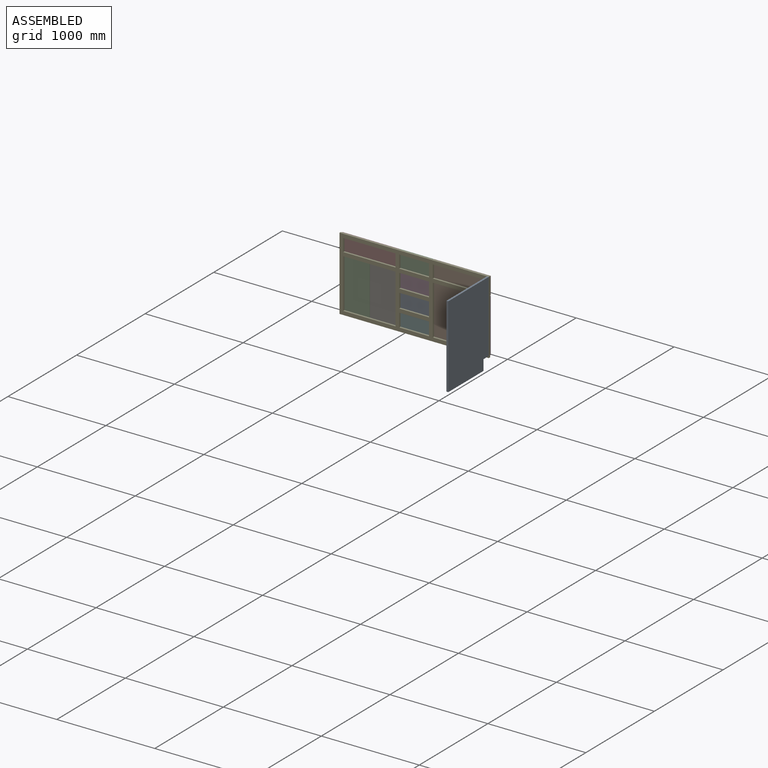
[diagram: assembled view]
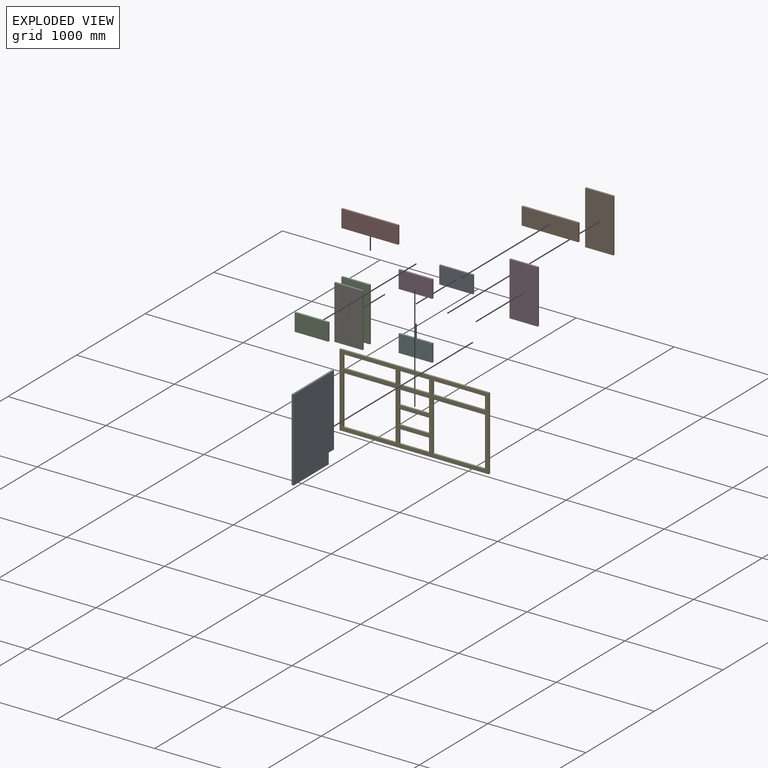
[diagram: exploded view]
GUIDED TOUR — MATED ASSEMBLY (Onshape document 588af566810c240f85f01b89, AutoMate assembly 588af566810c240f85f01b89_cfa53b5fc802aee5063241dd_668300cef39941d5db4d2f16_default)

This assembly has 12 components, labeled P0..P11 below (a component is one placed occurrence of a part; the same part can appear more than once), held together by 33 mates. A mate is a constraint between two components; its type names the relative motion it leaves free:
  PLANAR — leaves sliding in the plane through the listed point (normal = the listed direction) and rotation about that normal free.
Axis/direction vectors are unit vectors and 'through' points are millimeter coordinates, both in the assembly's world frame.

MATES
  1. PLANAR "Planar 2": P2 <-> P4, direction (0.000, 0.000, 1.000) through (-781.12, -74.08, 769.67) mm
  2. PLANAR "Planar 3": P2 <-> P4, direction (1.000, 0.000, 0.000) through (-609.67, -74.08, 680.77) mm
  3. PLANAR "Planar 27": P9 <-> P1, direction (-1.000, 0.000, 0.000) through (-603.32, -74.08, 312.47) mm
  4. PLANAR "Planar 32": P0 <-> P4, direction (0.000, 0.000, 1.000) through (-28.65, -397.93, 776.02) mm
  5. PLANAR "Planar 12": P8 <-> P5, direction (0.000, 0.000, -1.000) through (-781.12, -74.08, 223.57) mm
  6. PLANAR "Planar 25": P2 <-> P1, direction (0.000, 1.000, 0.000) through (-781.12, -64.56, 680.77) mm
  7. PLANAR "Planar 29": P7 <-> P2, direction (0.000, 0.000, 1.000) through (-1247.85, -74.08, 769.67) mm
  8. PLANAR "Planar 31": P0 <-> P4, direction (1.000, 0.000, 0.000) through (-19.12, -402.28, 363.09) mm
  9. PLANAR "Planar 23": P6 <-> P10, direction (0.000, 0.000, 1.000) through (-1102.59, -74.08, 585.52) mm
  10. PLANAR "Planar 10": P5 <-> P8, direction (0.000, 1.000, 0.000) through (-781.12, -64.56, 128.32) mm
  11. PLANAR "Planar 5": P2 <-> P11, direction (-1.000, 0.000, 0.000) through (-952.57, -74.08, 680.77) mm
  12. PLANAR "Planar 24": P6 <-> P10, direction (-1.000, 0.000, 0.000) through (-1246.26, -74.08, 312.47) mm
  13. PLANAR "Planar 33": P0 <-> P4, direction (0.000, 1.000, 0.000) through (-19.12, -102.66, 776.02) mm
  14. PLANAR "Planar 26": P1 <-> P2, direction (0.000, 0.000, 1.000) through (-314.40, -74.08, 769.67) mm
  15. PLANAR "Planar 22": P10 <-> P6, direction (0.000, 1.000, 0.000) through (-1393.10, -64.56, 312.47) mm
  16. PLANAR "Planar 13": P9 <-> P11, direction (0.000, 1.000, 0.000) through (-459.65, -64.56, 312.47) mm
  17. PLANAR "Planar 1": P4 <-> P2, direction (0.000, 1.000, 0.000) through (-971.62, -83.61, 737.92) mm
  18. PLANAR "Planar 11": P8 <-> P5, direction (-1.000, 0.000, 0.000) through (-952.57, -64.56, 223.57) mm
  19. PLANAR "Planar 6": P2 <-> P11, direction (0.000, 0.000, -1.000) through (-781.12, -74.08, 591.87) mm
  20. PLANAR "Planar 30": P6 <-> P7, direction (1.000, 0.000, 0.000) through (-958.92, -74.08, 312.47) mm
  21. PLANAR "Planar 21": P11 <-> P6, direction (-1.000, 0.000, 0.000) through (-952.57, -74.08, 496.62) mm
  22. PLANAR "Planar 7": P11 <-> P8, direction (0.000, 1.000, 0.000) through (-781.12, -64.56, 496.62) mm
  23. PLANAR "Planar 28": P7 <-> P2, direction (0.000, 1.000, 0.000) through (-1247.85, -64.56, 680.77) mm
  24. PLANAR "Planar 4": P11 <-> P2, direction (0.000, 1.000, 0.000) through (-781.12, -64.56, 496.62) mm
  25. PLANAR "Planar 8": P8 <-> P11, direction (-1.000, 0.000, 0.000) through (-952.57, -74.08, 312.47) mm
  26. PLANAR "Planar 9": P11 <-> P8, direction (0.000, 0.000, -1.000) through (-781.12, -74.08, 407.72) mm
  27. PLANAR "Planar 14": P11 <-> P9, direction (0.000, 0.000, 1.000) through (-781.12, -74.08, 585.52) mm
  28. PLANAR "Planar 15": P3 <-> P9, direction (0.000, 1.000, 0.000) through (-169.14, -64.56, 312.47) mm
  29. PLANAR "Planar 20": P11 <-> P6, direction (0.000, 0.000, 1.000) through (-781.12, -74.08, 585.52) mm
  30. PLANAR "Planar 19": P6 <-> P11, direction (0.000, 1.000, 0.000) through (-1246.26, -64.56, 312.47) mm
  31. PLANAR "Planar 16": P3 <-> P9, direction (-1.000, 0.000, 0.000) through (-312.81, -74.08, 312.47) mm
  32. PLANAR "Planar 17": P3 <-> P9, direction (0.000, 0.000, 1.000) through (-169.14, -74.08, 585.52) mm
  33. PLANAR "Planar 18": P11 <-> P9, direction (1.000, 0.000, 0.000) through (-609.67, -74.08, 496.62) mm

ASSEMBLY ORDER
  1. P11 — the base component [order verified]
  2. P5 [order verified]
  3. P8 [order verified]
  4. P1 [order verified]
  5. P7 [order verified]
  6. P3 [order verified]
  7. P6 [order verified]
  8. P9 [order verified]
  9. P10 [order verified]
  10. P2 [order verified]
  11. P4 [order verified]
  12. P0 [order verified]
Order-tag legend:
  [order verified] — this step's position reverses a verified removal order: the component was checked to insert without passing through the ones already placed.

Of the 12 components, 12 carry the full construction recipe — the FeatureScript program that regenerates the part's solid from scratch; the rest are supplied as boundary geometry only.
Each toured component is shown spotlighted twice — in the assembled view, then in the exploded view, where a leader line traces a displaced component back to its assembled socket (saturated green if recipe-attached, orange if geometry-only; every other component desaturated gray) — followed by its recipe or geometry summary and the mates that hold it.
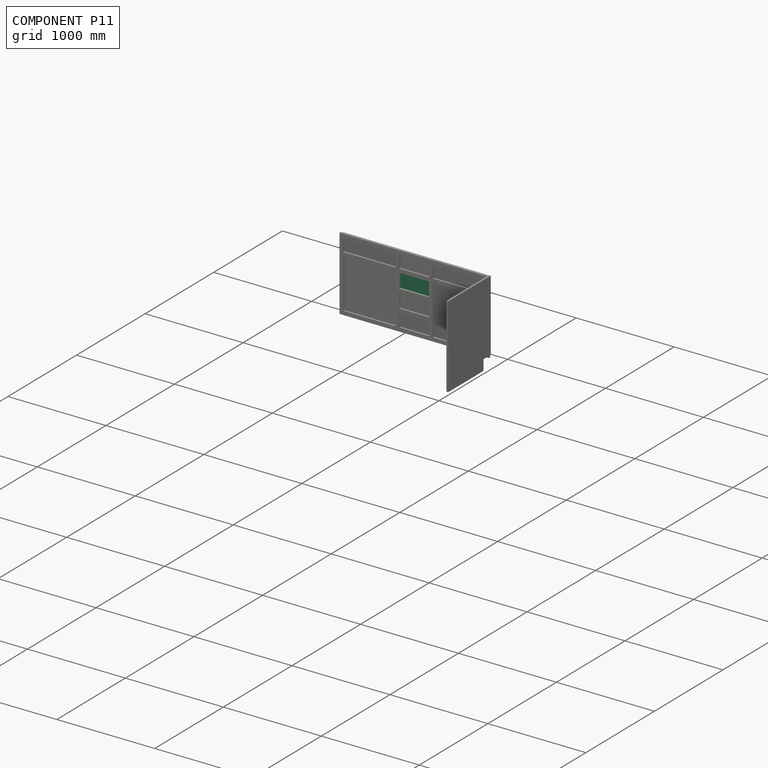
[diagram: component P11 — assembled]
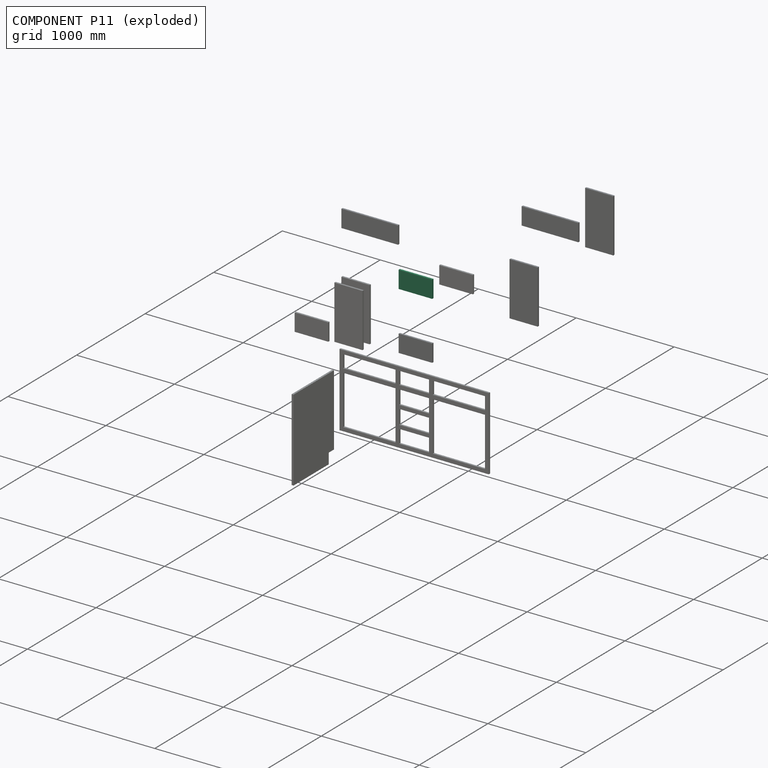
[diagram: component P11 — exploded]
COMPONENT P11 — same part as P2 (CADFS 00479709); its construction recipe is shown at P2.
Held by: PLANAR mate "Planar 5" to P2; PLANAR mate "Planar 13" to P9; PLANAR mate "Planar 6" to P2; PLANAR mate "Planar 21" to P6; PLANAR mate "Planar 7" to P8; PLANAR mate "Planar 4" to P2; PLANAR mate "Planar 8" to P8; PLANAR mate "Planar 9" to P8; PLANAR mate "Planar 14" to P9; PLANAR mate "Planar 20" to P6; PLANAR mate "Planar 19" to P6; PLANAR mate "Planar 18" to P9.
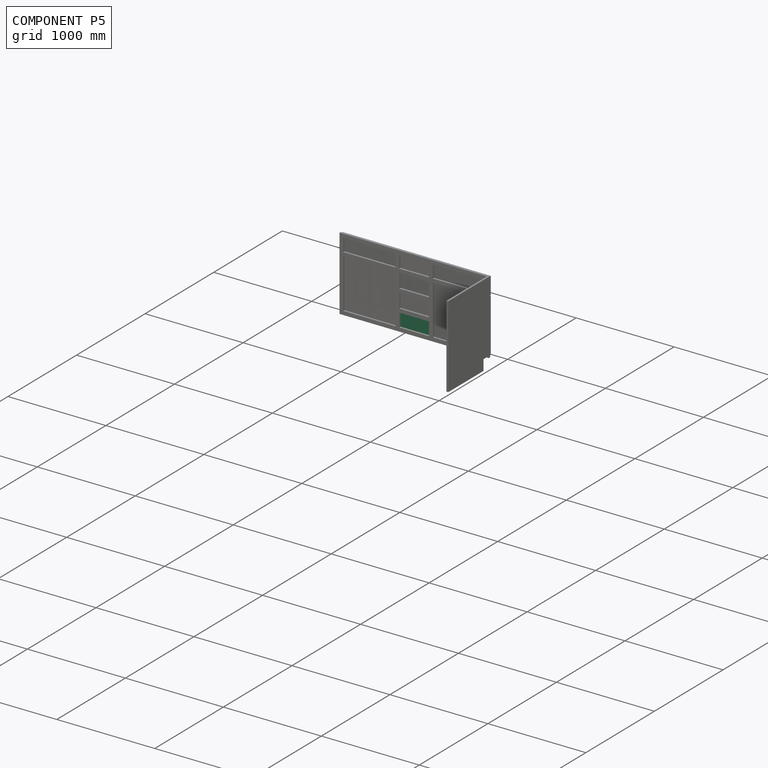
[diagram: component P5 — assembled]
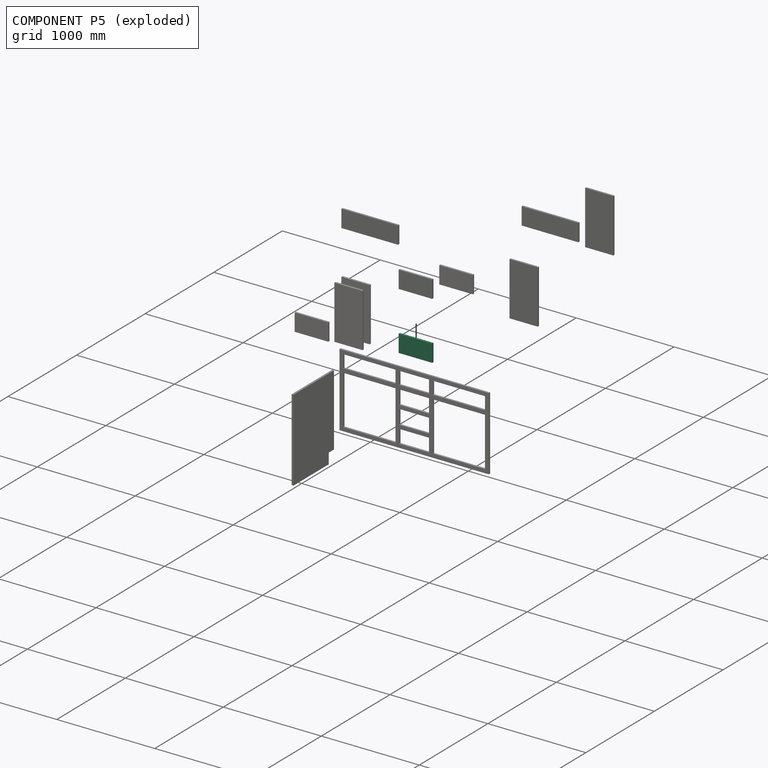
[diagram: component P5 — exploded]
COMPONENT P5 — same part as P2 (CADFS 00479709); its construction recipe is shown at P2.
Held by: PLANAR mate "Planar 12" to P8; PLANAR mate "Planar 10" to P8; PLANAR mate "Planar 11" to P8.
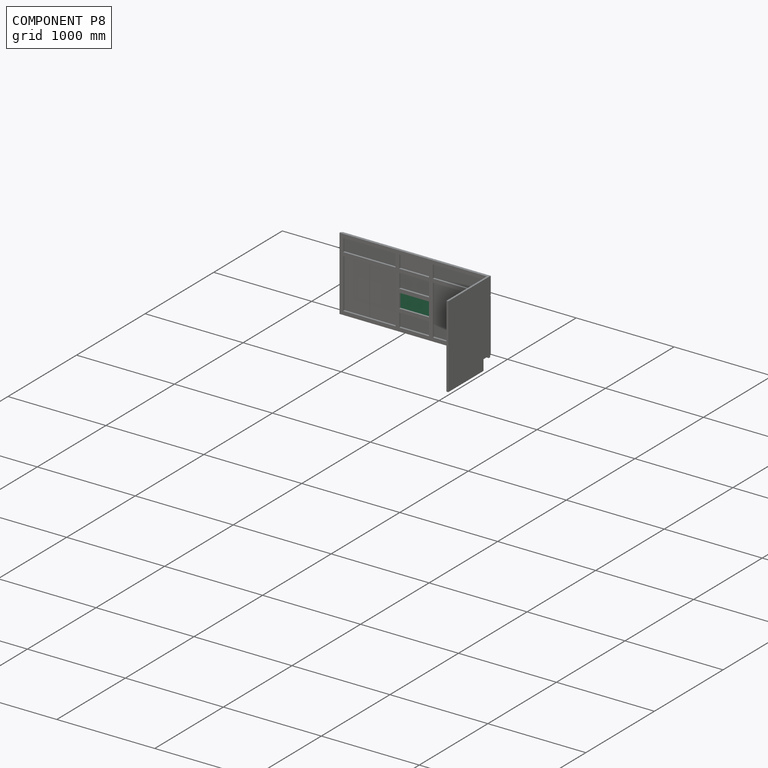
[diagram: component P8 — assembled]
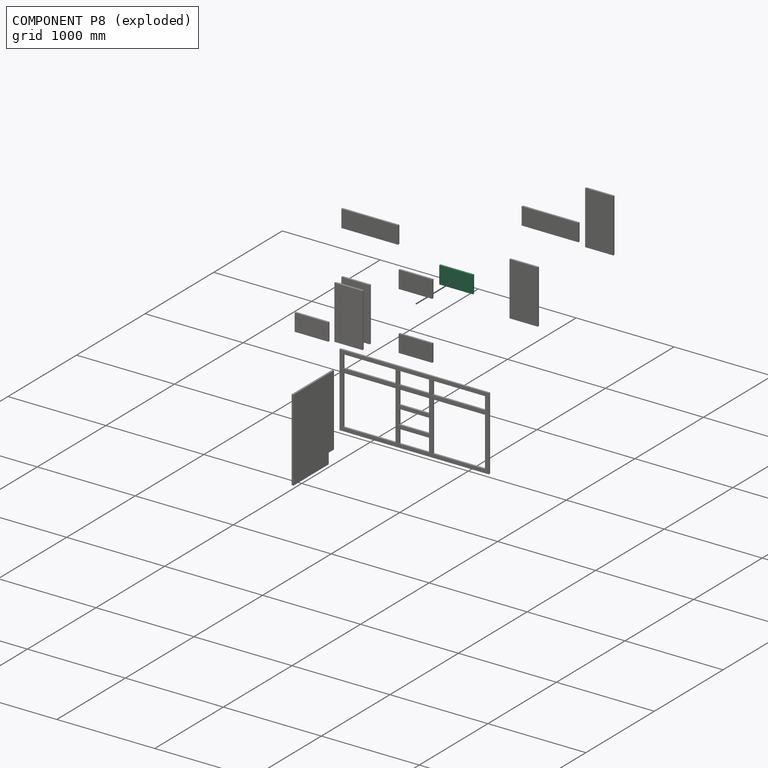
[diagram: component P8 — exploded]
COMPONENT P8 — same part as P2 (CADFS 00479709); its construction recipe is shown at P2.
Held by: PLANAR mate "Planar 12" to P5; PLANAR mate "Planar 10" to P5; PLANAR mate "Planar 11" to P5; PLANAR mate "Planar 7" to P11; PLANAR mate "Planar 8" to P11; PLANAR mate "Planar 9" to P11.
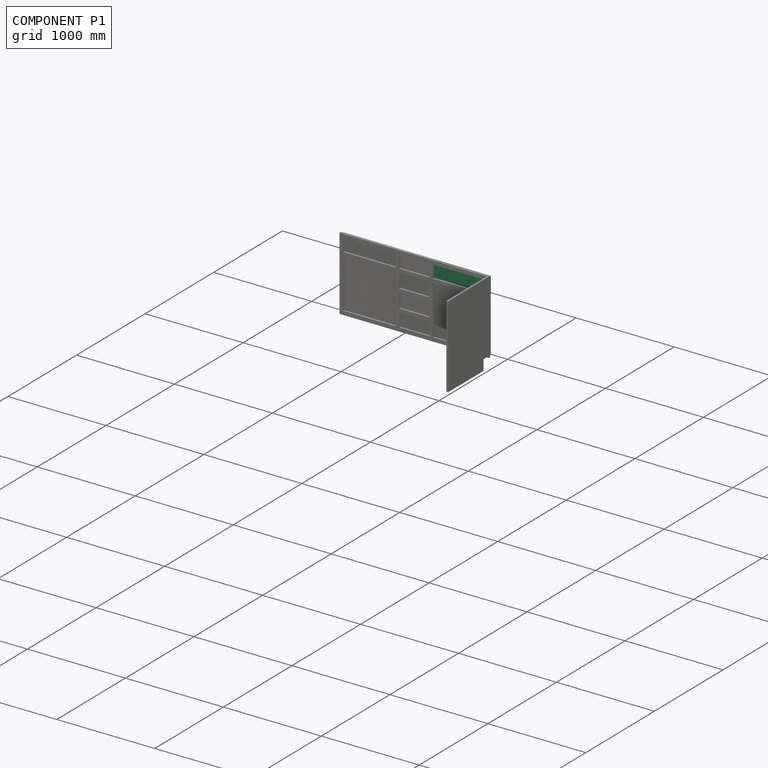
[diagram: component P1 — assembled]
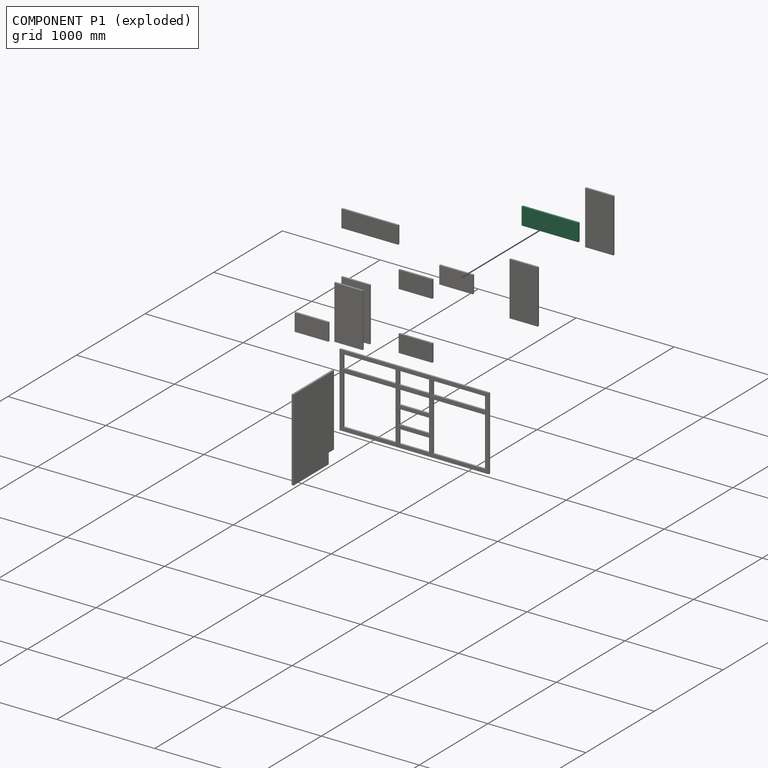
[diagram: component P1 — exploded]
COMPONENT P1 — recipe-attached (CADFS 00479710, mesh-verified: the recipe's output STEP matches this component's geometry to below the mesh-comparison resolution (tessellation chordal tolerance ~0.907 mm)).
Held by: PLANAR mate "Planar 27" to P9; PLANAR mate "Planar 25" to P2; PLANAR mate "Planar 26" to P2.
Construction recipe (FeatureScript — the CAD program that rebuilds this solid; sketch coordinates are in the units given by the * unit suffixes, e.g. mm):

FeatureScript 1511;
import(path : "onshape/std/geometry.fs", version : "1511.0");
import(path : "onshape/std/common.fs", version : "1511.0");
const mm = millimeter;
const VERTEX = EntityType.VERTEX;
const EDGE = EntityType.EDGE;
const FACE = EntityType.FACE;
const BODY = EntityType.BODY;
function v(x, y){return vector(x, y);}
function OD(order){return orderDisambiguation(order);}
function OSD(set){return originalSetDisambiguation(set);}
function TD(topology){return topologyDisambiguation(topology);}
function TDD(query){return trueDependencyDisambiguation(query);}
function sQuery(a, b, c) {return sketchEntityQuery(a, b, c);}

annotation { "Feature Type Name" : "Feature", "Feature Type Description" : "" }
export const myFeature = defineFeature(function(context is Context, id is Id, definition is map)
    precondition{}
    {
        {
            var Q0;
            Q0=qCreatedBy(makeId("Front.planeOp"),FACE);
            var sketch = newSketch(context, id + "F0", { "sketchPlane" : qUnion([Q0])});
            skLineSegment(sketch, "E0.rect.bottom", {"start": v(288.93, -88.9) * mm, "end": v(-288.93, -88.9) * mm});
            skLineSegment(sketch, "E0.rect.top", {"start": v(288.93, 88.9) * mm, "end": v(-288.93, 88.9) * mm});
            skLineSegment(sketch, "E0.rect.left", {"start": v(288.93, -88.9) * mm, "end": v(288.93, 88.9) * mm});
            skLineSegment(sketch, "E0.rect.right", {"start": v(-288.93, -88.9) * mm, "end": v(-288.93, 88.9) * mm});
            skPoint(sketch, "E0.rect.middle", {"position": v(0, 0) * mm});
            skSolve(sketch);
        }
        {
            var Q0;
            Q0=qSketchRegion(id+"F0",true);
            extrude(context, id + "F1", {"entities" : qUnion([Q0]), "depth" : 19.05 * mm});
        }
    });
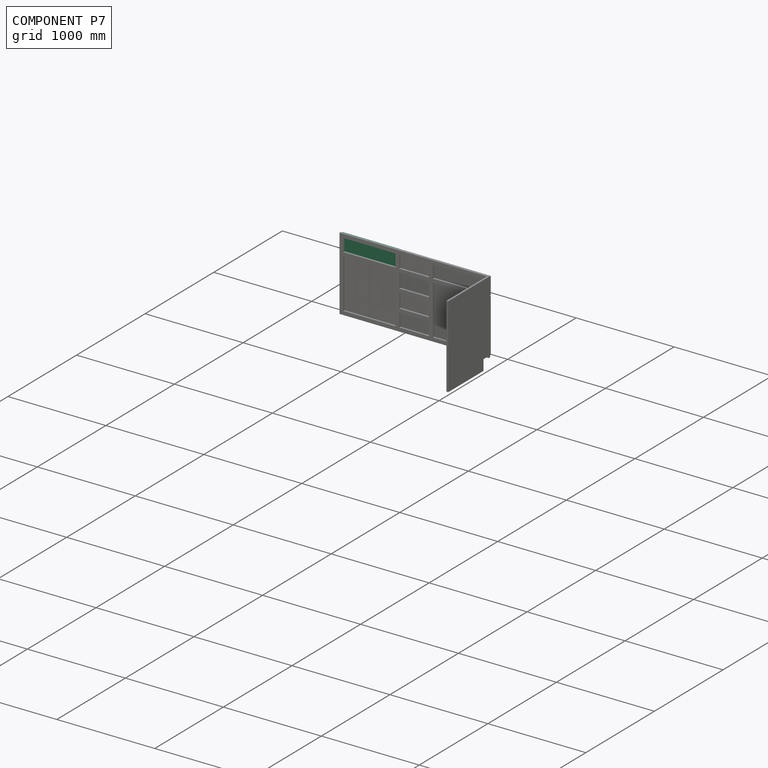
[diagram: component P7 — assembled]
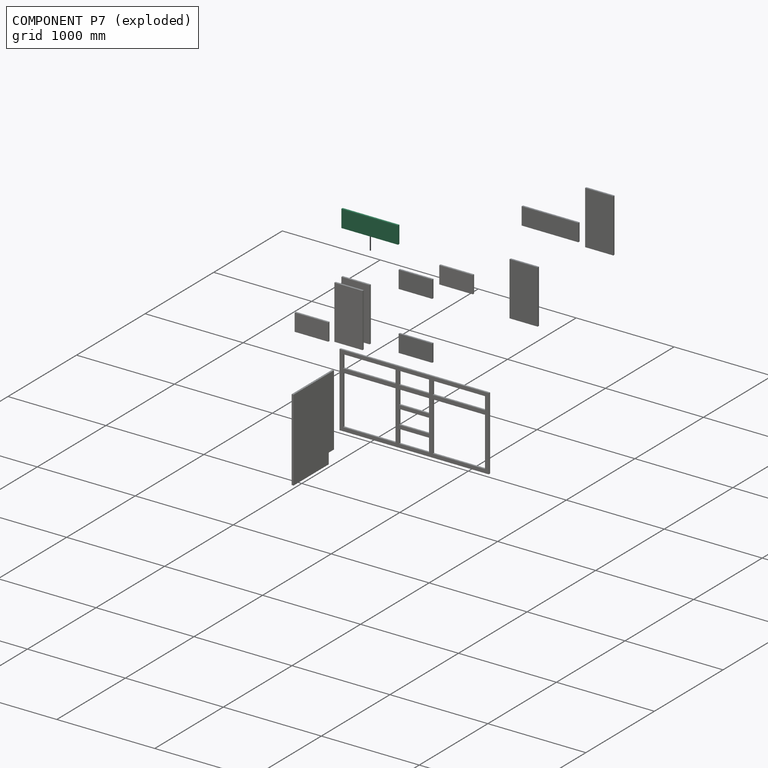
[diagram: component P7 — exploded]
COMPONENT P7 — same part as P1 (CADFS 00479710); its construction recipe is shown at P1.
Held by: PLANAR mate "Planar 29" to P2; PLANAR mate "Planar 30" to P6; PLANAR mate "Planar 28" to P2.
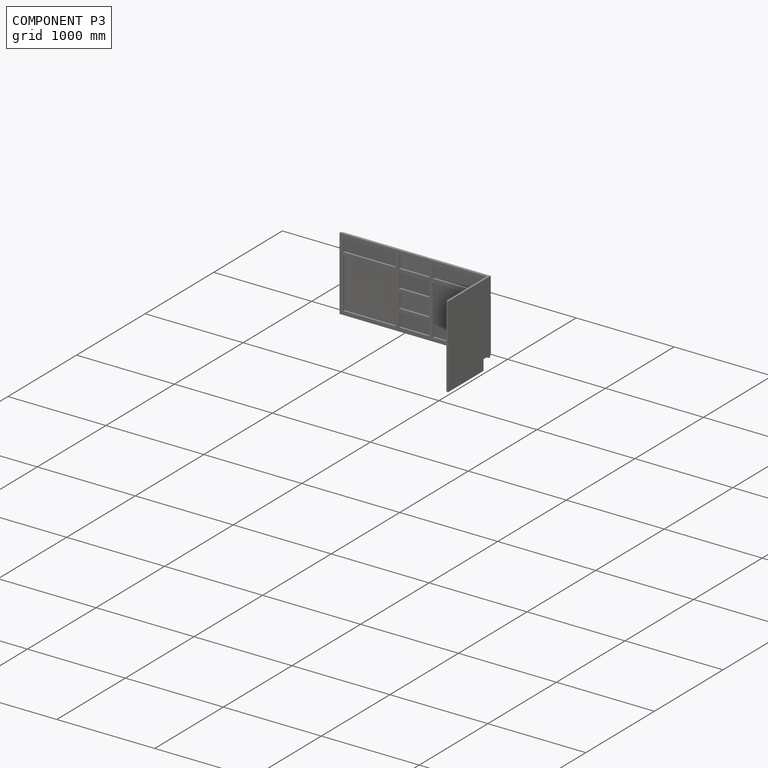
[diagram: component P3 — assembled]
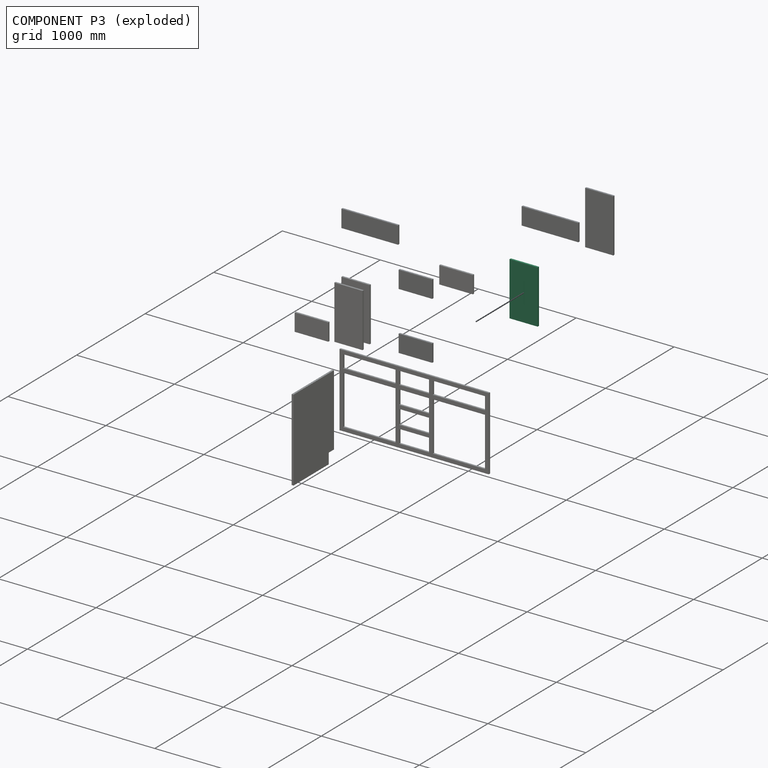
[diagram: component P3 — exploded]
COMPONENT P3 — recipe-attached (CADFS 00479712, mesh-verified: the recipe's output STEP matches this component's geometry to below the mesh-comparison resolution (tessellation chordal tolerance ~0.926 mm)).
Held by: PLANAR mate "Planar 15" to P9; PLANAR mate "Planar 16" to P9; PLANAR mate "Planar 17" to P9.
Construction recipe (FeatureScript — the CAD program that rebuilds this solid; sketch coordinates are in the units given by the * unit suffixes, e.g. mm):

FeatureScript 1511;
import(path : "onshape/std/geometry.fs", version : "1511.0");
import(path : "onshape/std/common.fs", version : "1511.0");
const mm = millimeter;
const VERTEX = EntityType.VERTEX;
const EDGE = EntityType.EDGE;
const FACE = EntityType.FACE;
const BODY = EntityType.BODY;
function v(x, y){return vector(x, y);}
function OD(order){return orderDisambiguation(order);}
function OSD(set){return originalSetDisambiguation(set);}
function TD(topology){return topologyDisambiguation(topology);}
function TDD(query){return trueDependencyDisambiguation(query);}
function sQuery(a, b, c) {return sketchEntityQuery(a, b, c);}

annotation { "Feature Type Name" : "Feature", "Feature Type Description" : "" }
export const myFeature = defineFeature(function(context is Context, id is Id, definition is map)
    precondition{}
    {
        {
            var Q0;
            Q0=qCreatedBy(makeId("Front.planeOp"),FACE);
            var sketch = newSketch(context, id + "F0", { "sketchPlane" : qUnion([Q0])});
            skLineSegment(sketch, "E0.bottom", {"start": v(0, 0) * mm, "end": v(287.34, 0) * mm});
            skLineSegment(sketch, "E0.top", {"start": v(0, 546.1) * mm, "end": v(287.34, 546.1) * mm});
            skLineSegment(sketch, "E0.left", {"start": v(0, 0) * mm, "end": v(0, 546.1) * mm});
            skLineSegment(sketch, "E0.right", {"start": v(287.34, 0) * mm, "end": v(287.34, 546.1) * mm});
            skSolve(sketch);
        }
        {
            var Q0;
            Q0=makeQuery(id+"F0.imprint","IMPRINT",FACE,{"disambiguationData":[TD([[makeQuery(id+"F0.imprint","IMPRINT",EDGE,{"derivedFrom":sQuery(id+"F0.wireOp",EDGE,"E0.bottom")}),1.0]])]});
            extrude(context, id + "F1", {"entities" : qUnion([Q0]), "depth" : 19.05 * mm});
        }
    });
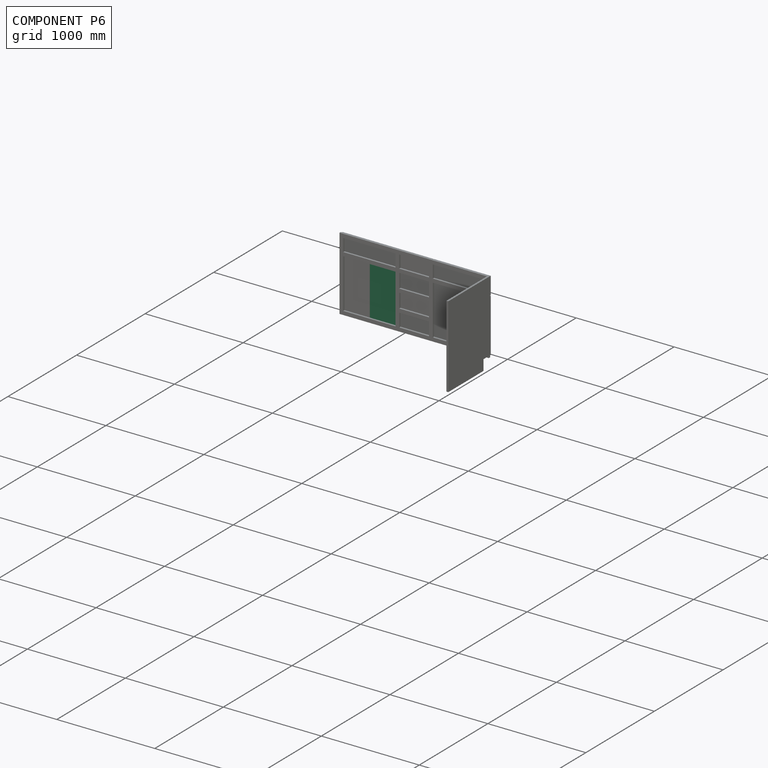
[diagram: component P6 — assembled]
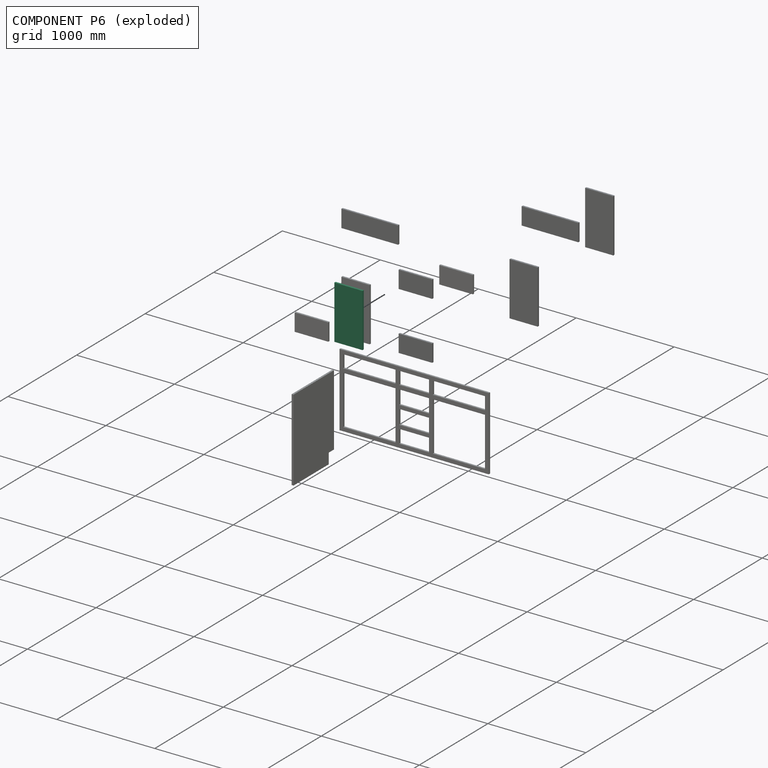
[diagram: component P6 — exploded]
COMPONENT P6 — same part as P3 (CADFS 00479712); its construction recipe is shown at P3.
Held by: PLANAR mate "Planar 23" to P10; PLANAR mate "Planar 24" to P10; PLANAR mate "Planar 22" to P10; PLANAR mate "Planar 30" to P7; PLANAR mate "Planar 21" to P11; PLANAR mate "Planar 20" to P11; PLANAR mate "Planar 19" to P11.
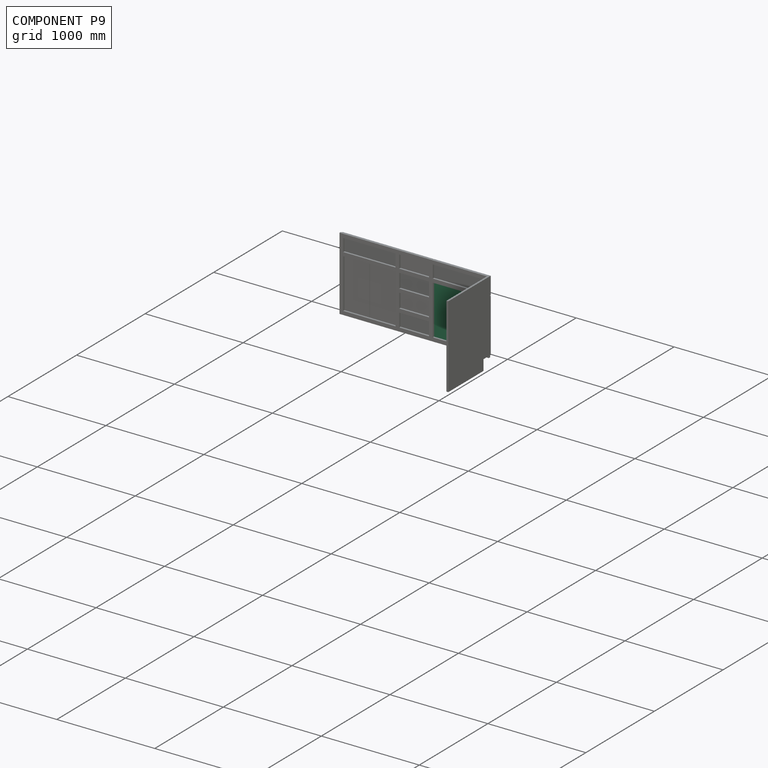
[diagram: component P9 — assembled]
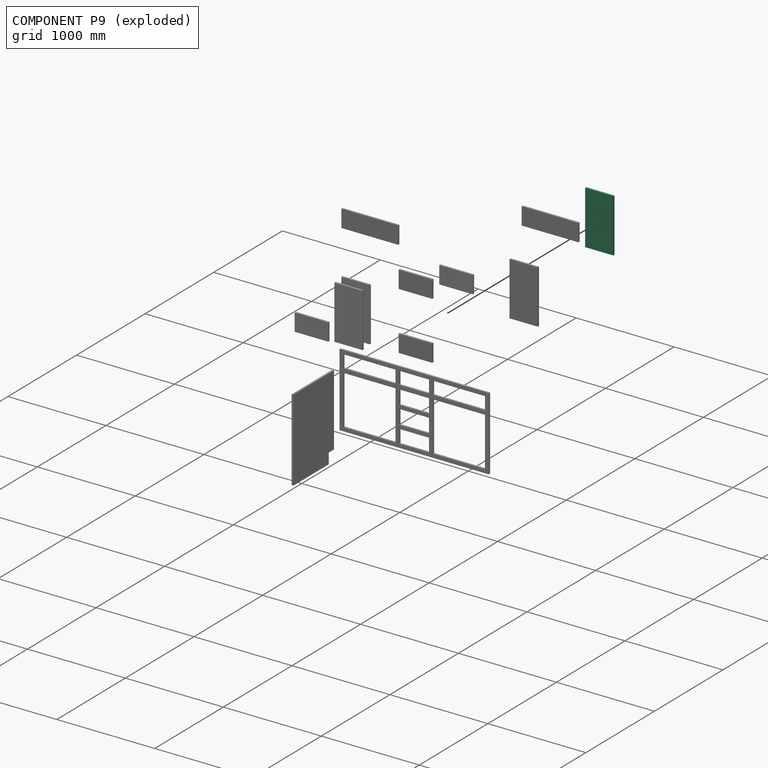
[diagram: component P9 — exploded]
COMPONENT P9 — same part as P3 (CADFS 00479712); its construction recipe is shown at P3.
Held by: PLANAR mate "Planar 27" to P1; PLANAR mate "Planar 13" to P11; PLANAR mate "Planar 14" to P11; PLANAR mate "Planar 15" to P3; PLANAR mate "Planar 16" to P3; PLANAR mate "Planar 17" to P3; PLANAR mate "Planar 18" to P11.
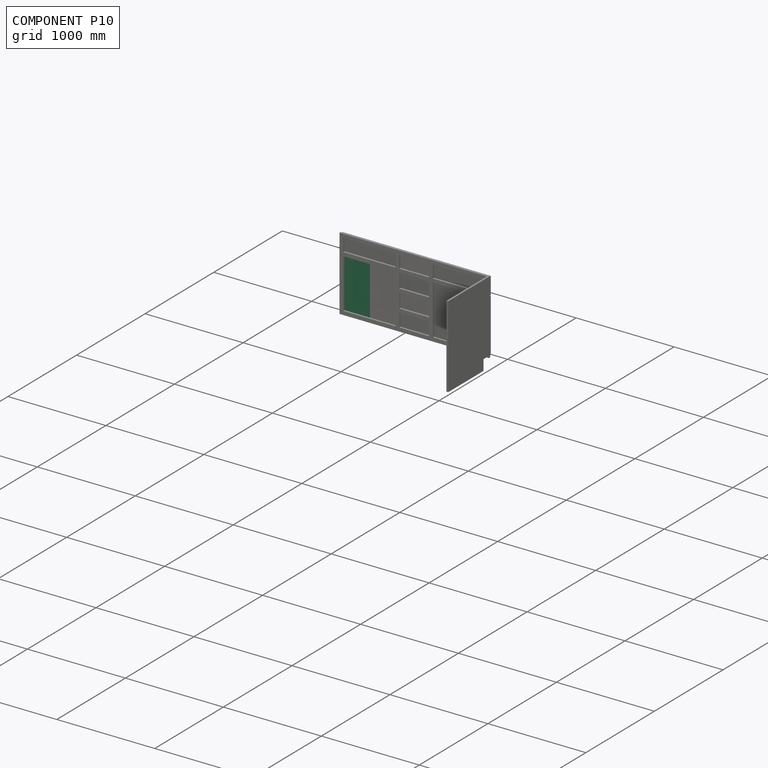
[diagram: component P10 — assembled]
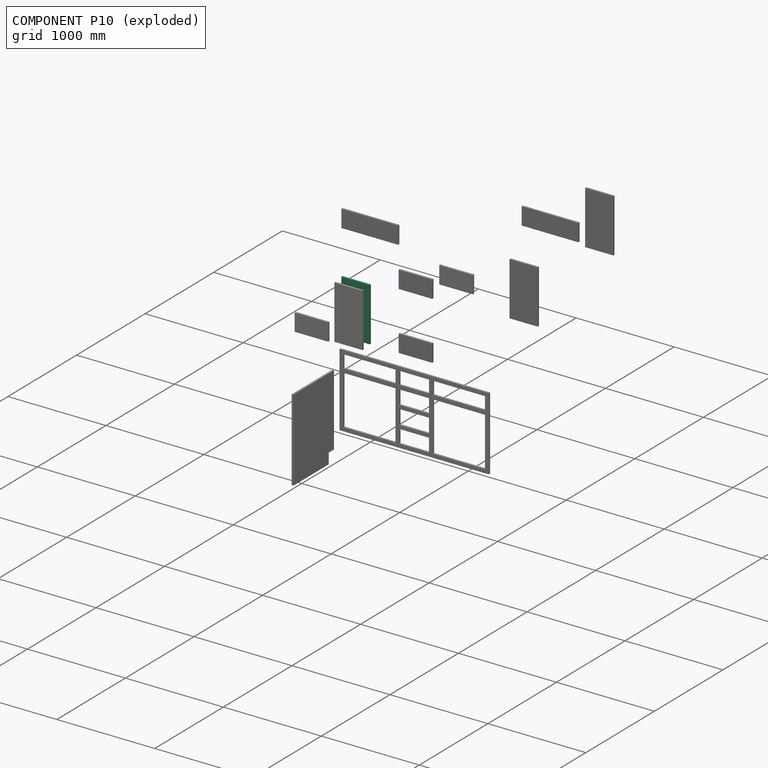
[diagram: component P10 — exploded]
COMPONENT P10 — same part as P3 (CADFS 00479712); its construction recipe is shown at P3.
Held by: PLANAR mate "Planar 23" to P6; PLANAR mate "Planar 24" to P6; PLANAR mate "Planar 22" to P6.
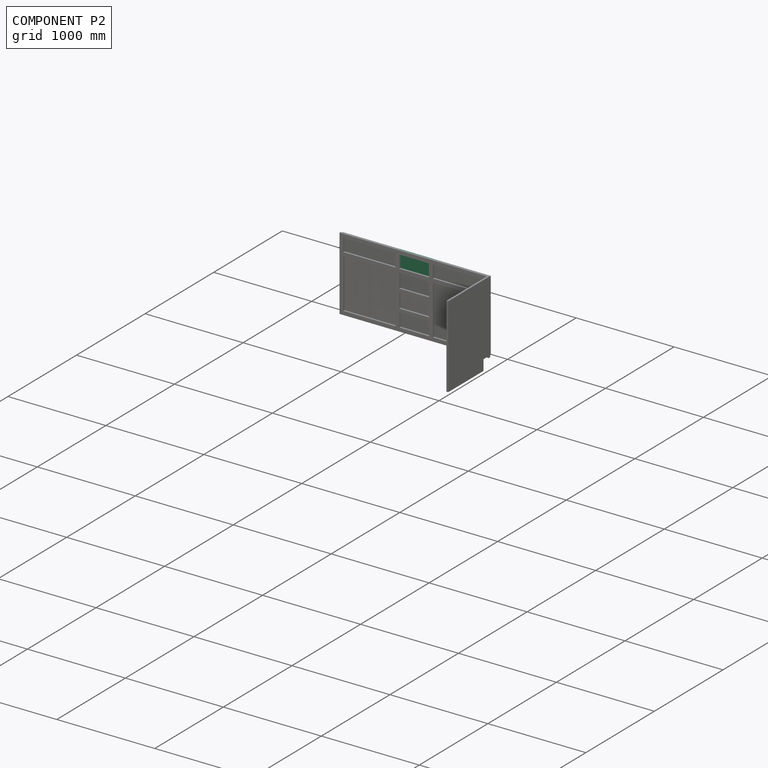
[diagram: component P2 — assembled]
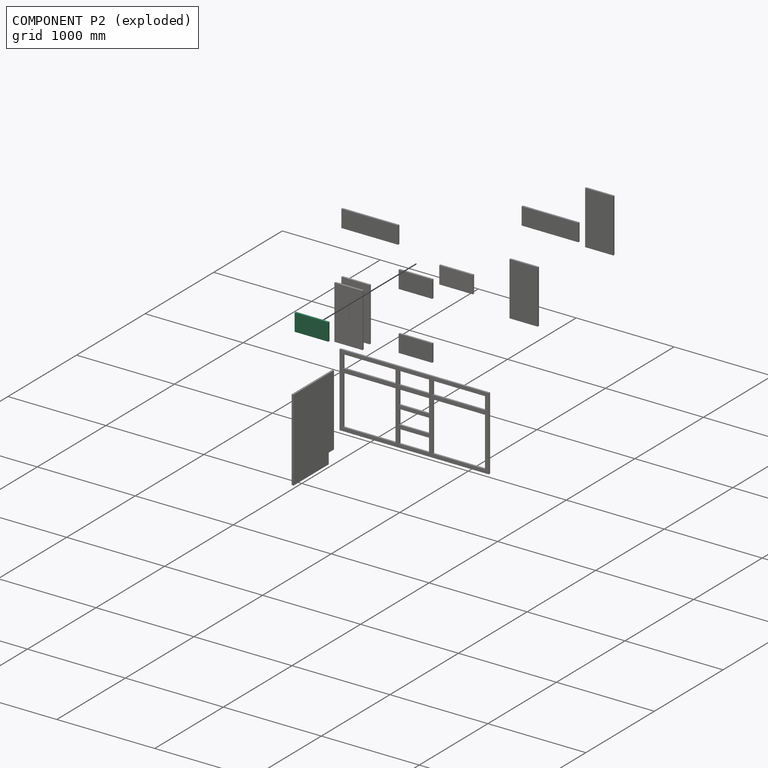
[diagram: component P2 — exploded]
COMPONENT P2 — recipe-attached (CADFS 00479709, mesh-verified: the recipe's output STEP matches this component's geometry to below the mesh-comparison resolution (tessellation chordal tolerance ~0.58 mm)).
Held by: PLANAR mate "Planar 2" to P4; PLANAR mate "Planar 3" to P4; PLANAR mate "Planar 25" to P1; PLANAR mate "Planar 29" to P7; PLANAR mate "Planar 5" to P11; PLANAR mate "Planar 26" to P1; PLANAR mate "Planar 1" to P4; PLANAR mate "Planar 6" to P11; PLANAR mate "Planar 28" to P7; PLANAR mate "Planar 4" to P11.
Construction recipe (FeatureScript — the CAD program that rebuilds this solid; sketch coordinates are in the units given by the * unit suffixes, e.g. mm):

FeatureScript 1511;
import(path : "onshape/std/geometry.fs", version : "1511.0");
import(path : "onshape/std/common.fs", version : "1511.0");
const mm = millimeter;
const VERTEX = EntityType.VERTEX;
const EDGE = EntityType.EDGE;
const FACE = EntityType.FACE;
const BODY = EntityType.BODY;
function v(x, y){return vector(x, y);}
function OD(order){return orderDisambiguation(order);}
function OSD(set){return originalSetDisambiguation(set);}
function TD(topology){return topologyDisambiguation(topology);}
function TDD(query){return trueDependencyDisambiguation(query);}
function sQuery(a, b, c) {return sketchEntityQuery(a, b, c);}

annotation { "Feature Type Name" : "Feature", "Feature Type Description" : "" }
export const myFeature = defineFeature(function(context is Context, id is Id, definition is map)
    precondition{}
    {
        {
            var Q0;
            Q0=qCreatedBy(makeId("Front.planeOp"),FACE);
            var sketch = newSketch(context, id + "F0", { "sketchPlane" : qUnion([Q0])});
            skLineSegment(sketch, "E0.rect.bottom", {"start": v(171.45, -88.9) * mm, "end": v(-171.45, -88.9) * mm});
            skLineSegment(sketch, "E0.rect.top", {"start": v(171.45, 88.9) * mm, "end": v(-171.45, 88.9) * mm});
            skLineSegment(sketch, "E0.rect.left", {"start": v(171.45, -88.9) * mm, "end": v(171.45, 88.9) * mm});
            skLineSegment(sketch, "E0.rect.right", {"start": v(-171.45, -88.9) * mm, "end": v(-171.45, 88.9) * mm});
            skPoint(sketch, "E0.rect.middle", {"position": v(0, 0) * mm});
            skSolve(sketch);
        }
        {
            var Q0;
            Q0=qSketchRegion(id+"F0",true);
            extrude(context, id + "F1", {"entities" : qUnion([Q0]), "depth" : 19.05 * mm});
        }
    });
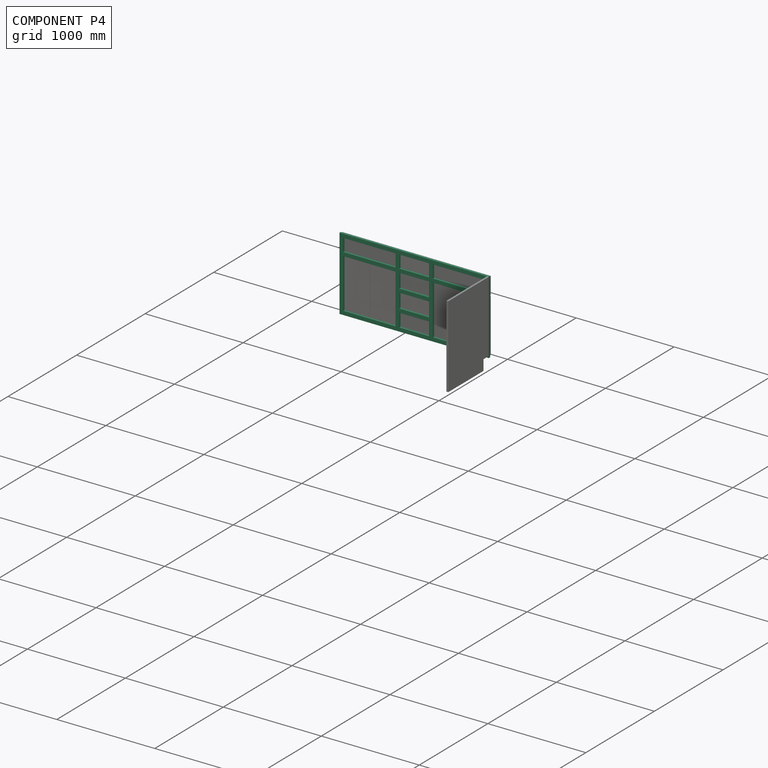
[diagram: component P4 — assembled]
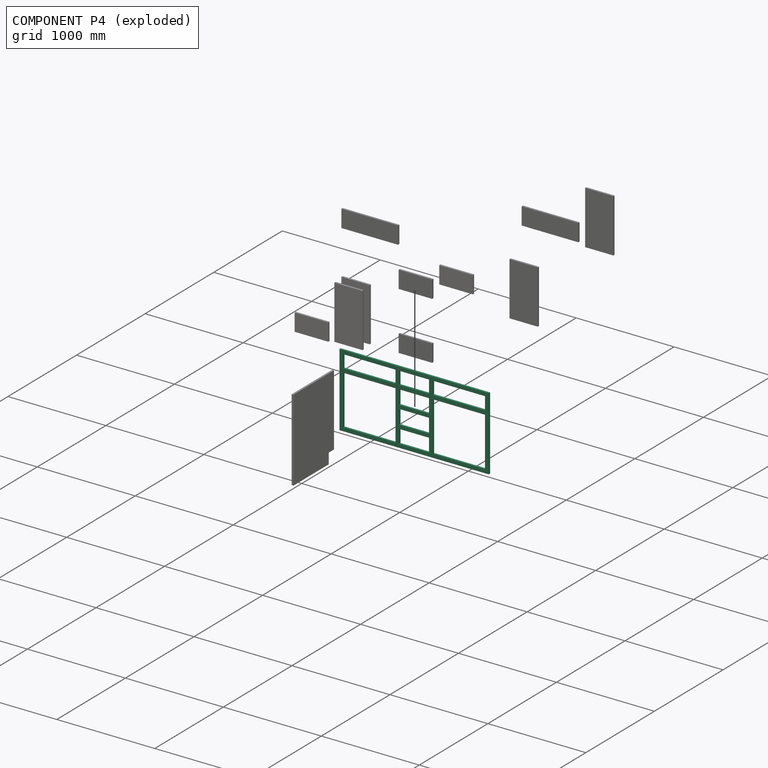
[diagram: component P4 — exploded]
COMPONENT P4 — recipe-attached (CADFS 00479708, mesh-verified: the recipe's output STEP matches this component's geometry to below the mesh-comparison resolution (tessellation chordal tolerance ~2.55 mm)).
Held by: PLANAR mate "Planar 2" to P2; PLANAR mate "Planar 3" to P2; PLANAR mate "Planar 32" to P0; PLANAR mate "Planar 31" to P0; PLANAR mate "Planar 33" to P0; PLANAR mate "Planar 1" to P2.
Construction recipe (FeatureScript — the CAD program that rebuilds this solid; sketch coordinates are in the units given by the * unit suffixes, e.g. mm):

FeatureScript 1511;
import(path : "onshape/std/geometry.fs", version : "1511.0");
import(path : "onshape/std/common.fs", version : "1511.0");
const mm = millimeter;
const VERTEX = EntityType.VERTEX;
const EDGE = EntityType.EDGE;
const FACE = EntityType.FACE;
const BODY = EntityType.BODY;
function v(x, y){return vector(x, y);}
function OD(order){return orderDisambiguation(order);}
function OSD(set){return originalSetDisambiguation(set);}
function TD(topology){return topologyDisambiguation(topology);}
function TDD(query){return trueDependencyDisambiguation(query);}
function sQuery(a, b, c) {return sketchEntityQuery(a, b, c);}

annotation { "Feature Type Name" : "Feature", "Feature Type Description" : "" }
export const myFeature = defineFeature(function(context is Context, id is Id, definition is map)
    precondition{}
    {
        {
            var Q0;
            Q0=qCreatedBy(makeId("Front.planeOp"),FACE);
            var sketch = newSketch(context, id + "F0", { "sketchPlane" : qUnion([Q0])});
            skLineSegment(sketch, "E0.bottom", {"start": v(0, 0) * mm, "end": v(1524, 0) * mm});
            skLineSegment(sketch, "E0.top", {"start": v(0, 749.3) * mm, "end": v(1524, 749.3) * mm});
            skLineSegment(sketch, "E0.left", {"start": v(0, 0) * mm, "end": v(0, 749.3) * mm});
            skLineSegment(sketch, "E0.right", {"start": v(1524, 0) * mm, "end": v(1524, 749.3) * mm});
            skLineSegment(sketch, "E1.0", {"start": v(38.1, 711.2) * mm, "end": v(571.5, 711.2) * mm});
            skLineSegment(sketch, "E1.1", {"start": v(38.1, 38.1) * mm, "end": v(38.1, 711.2) * mm});
            skLineSegment(sketch, "E1.2", {"start": v(38.1, 38.1) * mm, "end": v(571.5, 38.1) * mm});
            skLineSegment(sketch, "E1.3", {"start": v(1485.9, 38.1) * mm, "end": v(1485.9, 711.2) * mm});
            skLineSegment(sketch, "E2", {"start": v(571.5, 711.2) * mm, "end": v(571.5, 38.1) * mm});
            skLineSegment(sketch, "E3", {"start": v(609.6, 711.2) * mm, "end": v(609.6, 38.1) * mm});
            skLineSegment(sketch, "E4", {"start": v(914.4, 711.2) * mm, "end": v(914.4, 38.1) * mm});
            skLineSegment(sketch, "E5", {"start": v(952.5, 711.2) * mm, "end": v(952.5, 38.1) * mm});
            skLineSegment(sketch, "E6", {"start": v(38.1, 374.65) * mm, "end": v(571.5, 374.65) * mm, "construction": true});
            skLineSegment(sketch, "E7", {"start": v(952.5, 374.65) * mm, "end": v(1485.9, 374.65) * mm, "construction": true});
            skLineSegment(sketch, "E8.trimOffspring", {"start": v(609.6, 38.1) * mm, "end": v(914.4, 38.1) * mm});
            skLineSegment(sketch, "E9.trimOffspring", {"start": v(952.5, 38.1) * mm, "end": v(1485.9, 38.1) * mm});
            skLineSegment(sketch, "E10.trimOffspring", {"start": v(609.6, 711.2) * mm, "end": v(914.4, 711.2) * mm});
            skLineSegment(sketch, "E11.trimOffspring", {"start": v(952.5, 711.2) * mm, "end": v(1485.9, 711.2) * mm});
            skSolve(sketch);
        }
        {
            var Q0;
            Q0=makeQuery(id+"F0.imprint","IMPRINT",FACE,{"disambiguationData":[TD([[makeQuery(id+"F0.imprint","IMPRINT",EDGE,{"derivedFrom":sQuery(id+"F0.wireOp",EDGE,"E0.bottom")}),1.0]])]});
            extrude(context, id + "F1", {"entities" : qUnion([Q0]), "depth" : 19.05 * mm});
        }
        {
            var Q0;
            Q0=makeQuery(id+"F1.opExtrude","SWEPT_FACE",FACE,{"disambiguationData":[OSD([sQuery(id+"F0.wireOp",EDGE,"E1.1")])]});
            var sketch = newSketch(context, id + "F2", { "sketchPlane" : qUnion([Q0])});
            skLineSegment(sketch, "E12.bottom", {"start": v(-19.05, 581.02) * mm, "end": v(0, 581.02) * mm});
            skLineSegment(sketch, "E12.top", {"start": v(-19.05, 542.92) * mm, "end": v(0, 542.92) * mm});
            skLineSegment(sketch, "E12.left", {"start": v(-19.05, 581.02) * mm, "end": v(-19.05, 542.92) * mm});
            skLineSegment(sketch, "E12.right", {"start": v(0, 581.02) * mm, "end": v(0, 542.92) * mm});
            skSolve(sketch);
        }
        {
            var Q0;
            Q0=qSketchRegion(id+"F2",true);
            var Q1;
            Q1=makeQuery(id+"F1.opExtrude","SWEPT_FACE",FACE,{"disambiguationData":[OSD([sQuery(id+"F0.wireOp",EDGE,"E1.3")])]});
            extrude(context, id + "F3", {"entities" : qUnion([Q0]), "operationType" : NewBodyOperationType.ADD, "endBound" : BoundingType.UP_TO_SURFACE, "endBoundEntityFace" : qUnion([Q1]), "depth" : 25.4 * mm});
        }
        {
            var Q0;
            {var subQ3=sQuery(id+"F0.wireOp",EDGE,"E8.trimOffspring");var subQ6=sQuery(id+"F0.wireOp",EDGE,"E3");Q0=makeQuery(id+"F3.boolean.opBoolean","SPLIT",FACE,{"disambiguationData":[TD([makeQuery(id+"F1.opExtrude","SWEPT_FACE",FACE,{"disambiguationData":[OSD([subQ3])]})])],"derivedFrom":makeQuery(id+"F1.opExtrude","SWEPT_FACE",FACE,{"disambiguationData":[OSD([subQ6])]})});}
            var sketch = newSketch(context, id + "F4", { "sketchPlane" : qUnion([Q0])});
            skLineSegment(sketch, "E13.bottom", {"start": v(-19.05, 396.87) * mm, "end": v(0, 396.87) * mm});
            skLineSegment(sketch, "E13.top", {"start": v(-19.05, 358.77) * mm, "end": v(0, 358.77) * mm});
            skLineSegment(sketch, "E13.left", {"start": v(-19.05, 396.87) * mm, "end": v(-19.05, 358.77) * mm});
            skLineSegment(sketch, "E13.right", {"start": v(0, 396.87) * mm, "end": v(0, 358.77) * mm});
            skSolve(sketch);
        }
        {
            var Q0;
            Q0=qSketchRegion(id+"F4",true);
            extrude(context, id + "F5", {"entities" : qUnion([Q0]), "operationType" : NewBodyOperationType.ADD, "endBound" : BoundingType.UP_TO_NEXT, "depth" : 25.4 * mm});
        }
        {
            var Q0;
            {var subQ4=sQuery(id+"F0.wireOp",EDGE,"E8.trimOffspring");var subQ7=sQuery(id+"F0.wireOp",EDGE,"E3");var subQ18=makeQuery(id+"F1.opExtrude","SWEPT_FACE",FACE,{"disambiguationData":[OSD([subQ4])]});Q0=makeQuery(id+"F5.boolean.opBoolean","SPLIT",FACE,{"disambiguationData":[TD([subQ18])],"derivedFrom":makeQuery(id+"F3.boolean.opBoolean","SPLIT",FACE,{"disambiguationData":[TD([subQ18])],"derivedFrom":makeQuery(id+"F1.opExtrude","SWEPT_FACE",FACE,{"disambiguationData":[OSD([subQ7])]})})});}
            var sketch = newSketch(context, id + "F6", { "sketchPlane" : qUnion([Q0])});
            skLineSegment(sketch, "E14.bottom", {"start": v(-19.05, 212.72) * mm, "end": v(0, 212.72) * mm});
            skLineSegment(sketch, "E14.top", {"start": v(-19.05, 174.62) * mm, "end": v(0, 174.62) * mm});
            skLineSegment(sketch, "E14.left", {"start": v(-19.05, 212.72) * mm, "end": v(-19.05, 174.62) * mm});
            skLineSegment(sketch, "E14.right", {"start": v(0, 212.72) * mm, "end": v(0, 174.62) * mm});
            skSolve(sketch);
        }
        {
            var Q0;
            Q0=qSketchRegion(id+"F6",true);
            extrude(context, id + "F7", {"entities" : qUnion([Q0]), "operationType" : NewBodyOperationType.ADD, "endBound" : BoundingType.UP_TO_NEXT, "depth" : 25.4 * mm});
        }
    });
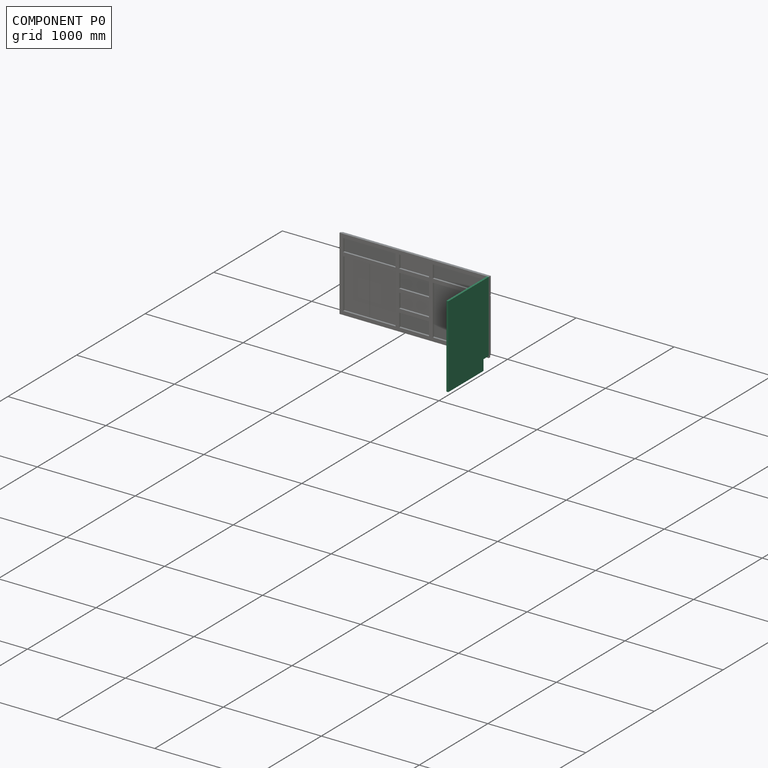
[diagram: component P0 — assembled]
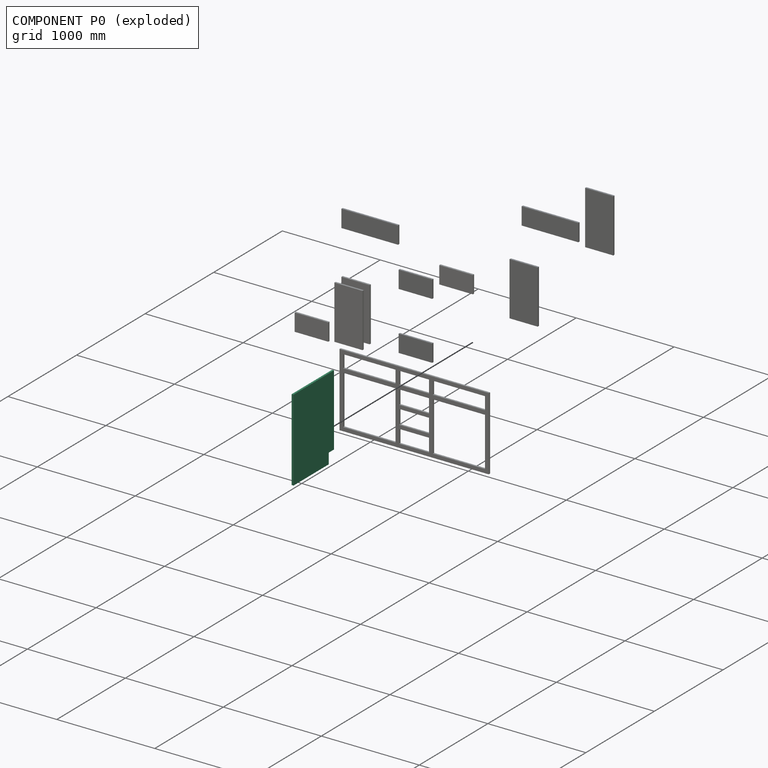
[diagram: component P0 — exploded]
COMPONENT P0 — recipe-attached (CADFS 00479711, mesh-verified: the recipe's output STEP matches this component's geometry to below the mesh-comparison resolution (tessellation chordal tolerance ~1.54 mm)).
Held by: PLANAR mate "Planar 32" to P4; PLANAR mate "Planar 31" to P4; PLANAR mate "Planar 33" to P4.
Construction recipe (FeatureScript — the CAD program that rebuilds this solid; sketch coordinates are in the units given by the * unit suffixes, e.g. mm):

FeatureScript 1511;
import(path : "onshape/std/geometry.fs", version : "1511.0");
import(path : "onshape/std/common.fs", version : "1511.0");
const mm = millimeter;
const VERTEX = EntityType.VERTEX;
const EDGE = EntityType.EDGE;
const FACE = EntityType.FACE;
const BODY = EntityType.BODY;
function v(x, y){return vector(x, y);}
function OD(order){return orderDisambiguation(order);}
function OSD(set){return originalSetDisambiguation(set);}
function TD(topology){return topologyDisambiguation(topology);}
function TDD(query){return trueDependencyDisambiguation(query);}
function sQuery(a, b, c) {return sketchEntityQuery(a, b, c);}

annotation { "Feature Type Name" : "Feature", "Feature Type Description" : "" }
export const myFeature = defineFeature(function(context is Context, id is Id, definition is map)
    precondition{}
    {
        {
            var Q0;
            Q0=qCreatedBy(makeId("Right.planeOp"),FACE);
            var sketch = newSketch(context, id + "F0", { "sketchPlane" : qUnion([Q0])});
            skLineSegment(sketch, "E0.bottom", {"start": v(0, 0) * mm, "end": v(514.35, 0) * mm});
            skLineSegment(sketch, "E0.top", {"start": v(0, 838.2) * mm, "end": v(590.55, 838.2) * mm});
            skLineSegment(sketch, "E0.left", {"start": v(0, 0) * mm, "end": v(0, 838.2) * mm});
            skLineSegment(sketch, "E0.right", {"start": v(590.55, 107.95) * mm, "end": v(590.55, 838.2) * mm});
            skLineSegment(sketch, "E1", {"start": v(590.55, 107.95) * mm, "end": v(514.35, 107.95) * mm});
            skLineSegment(sketch, "E2", {"start": v(514.35, 107.95) * mm, "end": v(514.35, 0) * mm});
            skSolve(sketch);
        }
        {
            var Q0;
            Q0=qSketchRegion(id+"F0",true);
            extrude(context, id + "F1", {"entities" : qUnion([Q0]), "depth" : 19.05 * mm});
        }
    });
PROVENANCE & LICENSES
Assembly (occurrences, transforms, mates, per-part STEP geometry): AutoMate dataset, Zenodo record 7776208, CC0.
Construction recipes: CADFS (HuggingFace VladPyatov/CADFS, CC-BY-4.0, layered over the ABC dataset), FeatureScript reconstruction programs keyed by ABC model id.
Join: ABC meta listings map ABC model id -> Onshape documentId; within a shared document, parts are matched by geometric signature (bounding-box dims + volume at 0.1% relative tolerance, exact B-rep face/solid counts).
Verification: 12 of this assembly's 12 components carry a recipe attachment, and every attachment is mesh-verified: the CADFS STEP and the AutoMate member STEP were compared as meshes in their shared local frame (symmetric sampled-point-to-mesh distance); worst across the 12 attachments: below the mesh-comparison resolution (tessellation chordal tolerance ~2.55 mm) on a 1698 mm part.
Renders: orthographic iso camera (az 35 / el 25); the floor grid conveys scale (grid pitch printed in each image; no ruler). In the exploded view each component is displaced by its stored offset vector: the offsets alone carry the explosion direction (mate normal/axis signs are not orientation cues and do not encode it), and separation distances are assigned per mate-chain, not proportionally to assembly-order depth.
